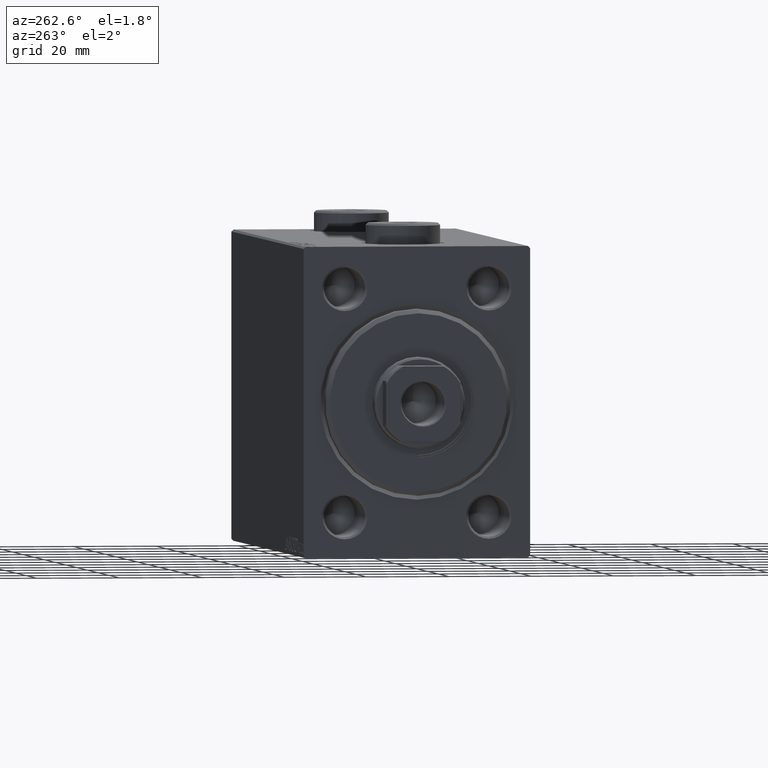
[diagram: clean part render]
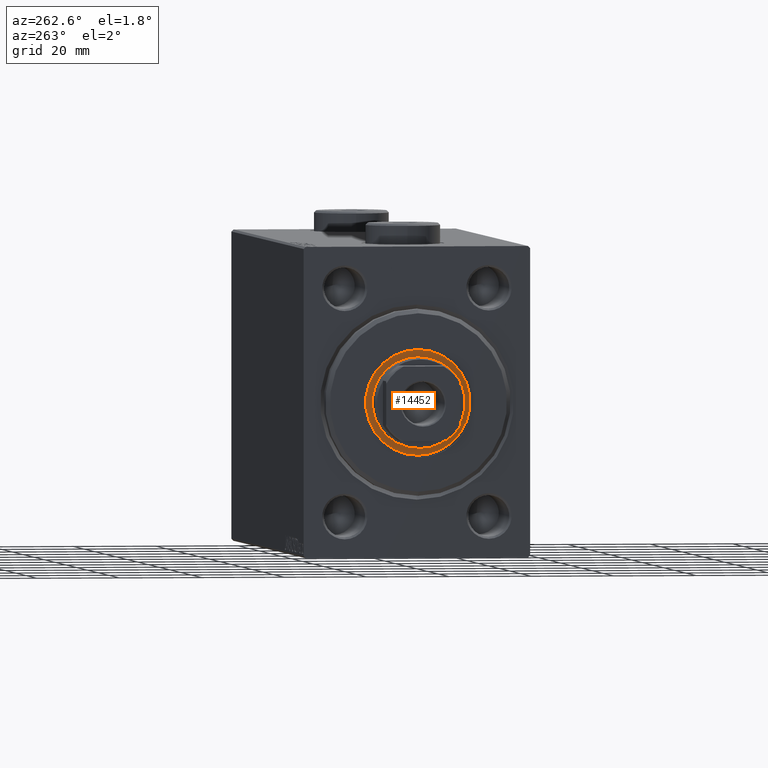
[diagram: same view with one face highlighted and labeled with its STEP entity id]
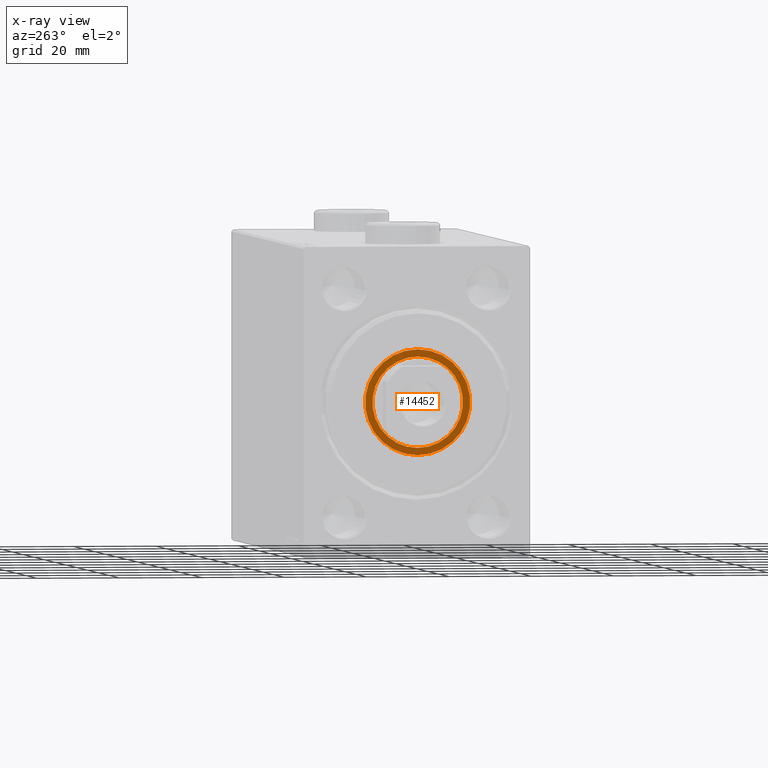
[diagram: x-ray of the same camera — body ghosted, the highlighted face saturated]
A machine part, auxiliary view. The second image highlights one B-rep face of the part: STEP entity #14452.
The next image is the same camera in x-ray: the body ghosted, the highlighted face saturated — about 0% of this face is hidden behind the body in this view.
In plain terms, the highlighted planar face has unit normal (-1, 0, 0).
Its self-contained STEP definition (entity closure, byte-faithful):
#36 = CARTESIAN_POINT ( 'NONE',  ( 1.500000000000000000, 0.000000000000000000, 0.000000000000000000 ) ) ;
#1568 = DIRECTION ( 'NONE',  ( 0.000000000000000000, 0.000000000000000000, -1.000000000000000000 ) ) ;
#1744 = CARTESIAN_POINT ( 'NONE',  ( 1.499999999999999556, 0.000000000000000000, 0.000000000000000000 ) ) ;
#3680 = CARTESIAN_POINT ( 'NONE',  ( 1.499999999999999556, 0.000000000000000000, 0.000000000000000000 ) ) ;
#4794 = FACE_BOUND ( 'NONE', #30313, .T. ) ;
#4854 = CIRCLE ( 'NONE', #41699, 11.00000000000000000 ) ;
#5241 = CARTESIAN_POINT ( 'NONE',  ( 1.500000000000000000, 0.000000000000000000, 0.000000000000000000 ) ) ;
#6931 = DIRECTION ( 'NONE',  ( 1.000000000000000000, 0.000000000000000000, 0.000000000000000000 ) ) ;
#7279 = AXIS2_PLACEMENT_3D ( 'NONE', #5241, #8941, #1568 ) ;
#7555 = EDGE_CURVE ( 'NONE', #26266, #43521, #4854, .T. ) ;
#7968 = DIRECTION ( 'NONE',  ( 1.000000000000000000, 0.000000000000000000, 0.000000000000000000 ) ) ;
#8941 = DIRECTION ( 'NONE',  ( 1.000000000000000000, 0.000000000000000000, 0.000000000000000000 ) ) ;
#9132 = AXIS2_PLACEMENT_3D ( 'NONE', #36, #28179, #42221 ) ;
#9887 = EDGE_LOOP ( 'NONE', ( #9952, #24379 ) ) ;
#9946 = DIRECTION ( 'NONE',  ( 0.000000000000000000, 0.000000000000000000, -1.000000000000000000 ) ) ;
#9952 = ORIENTED_EDGE ( 'NONE', *, *, #32949, .T. ) ;
#10856 = DIRECTION ( 'NONE',  ( 1.000000000000000000, 0.000000000000000000, 0.000000000000000000 ) ) ;
#11734 = CIRCLE ( 'NONE', #33817, 11.00000000000000000 ) ;
#12429 = CIRCLE ( 'NONE', #37470, 12.75000000000000000 ) ;
#13305 = CARTESIAN_POINT ( 'NONE',  ( 1.499999999999999556, 1.347111479062088405E-15, 11.00000000000000000 ) ) ;
#14204 = EDGE_CURVE ( 'NONE', #31145, #32273, #12429, .T. ) ;
#14452 = ADVANCED_FACE ( 'NONE', ( #4794, #29718 ), #43753, .T. ) ;
#14885 = DIRECTION ( 'NONE',  ( 0.000000000000000000, 0.000000000000000000, -1.000000000000000000 ) ) ;
#15736 = EDGE_CURVE ( 'NONE', #43521, #26266, #11734, .T. ) ;
#17456 = ORIENTED_EDGE ( 'NONE', *, *, #7555, .F. ) ;
#22018 = CARTESIAN_POINT ( 'NONE',  ( 1.500000000000000000, 0.000000000000000000, 12.75000000000000000 ) ) ;
#23262 = CARTESIAN_POINT ( 'NONE',  ( 1.500000000000000000, 1.561424668912874914E-15, -12.75000000000000000 ) ) ;
#24379 = ORIENTED_EDGE ( 'NONE', *, *, #14204, .T. ) ;
#26266 = VERTEX_POINT ( 'NONE', #41607 ) ;
#26301 = DIRECTION ( 'NONE',  ( 0.000000000000000000, 0.000000000000000000, -1.000000000000000000 ) ) ;
#26403 = ORIENTED_EDGE ( 'NONE', *, *, #15736, .F. ) ;
#28179 = DIRECTION ( 'NONE',  ( 1.000000000000000000, 0.000000000000000000, 0.000000000000000000 ) ) ;
#29718 = FACE_OUTER_BOUND ( 'NONE', #9887, .T. ) ;
#30313 = EDGE_LOOP ( 'NONE', ( #17456, #26403 ) ) ;
#31145 = VERTEX_POINT ( 'NONE', #23262 ) ;
#32273 = VERTEX_POINT ( 'NONE', #22018 ) ;
#32949 = EDGE_CURVE ( 'NONE', #32273, #31145, #43747, .T. ) ;
#33817 = AXIS2_PLACEMENT_3D ( 'NONE', #1744, #7968, #14885 ) ;
#37470 = AXIS2_PLACEMENT_3D ( 'NONE', #42450, #10856, #26301 ) ;
#41607 = CARTESIAN_POINT ( 'NONE',  ( 1.499999999999999556, 0.000000000000000000, -11.00000000000000000 ) ) ;
#41699 = AXIS2_PLACEMENT_3D ( 'NONE', #3680, #6931, #9946 ) ;
#42221 = DIRECTION ( 'NONE',  ( 0.000000000000000000, 0.000000000000000000, -1.000000000000000000 ) ) ;
#42450 = CARTESIAN_POINT ( 'NONE',  ( 1.500000000000000000, 0.000000000000000000, 0.000000000000000000 ) ) ;
#43521 = VERTEX_POINT ( 'NONE', #13305 ) ;
#43747 = CIRCLE ( 'NONE', #9132, 12.75000000000000000 ) ;
#43753 = PLANE ( 'NONE',  #7279 ) ;